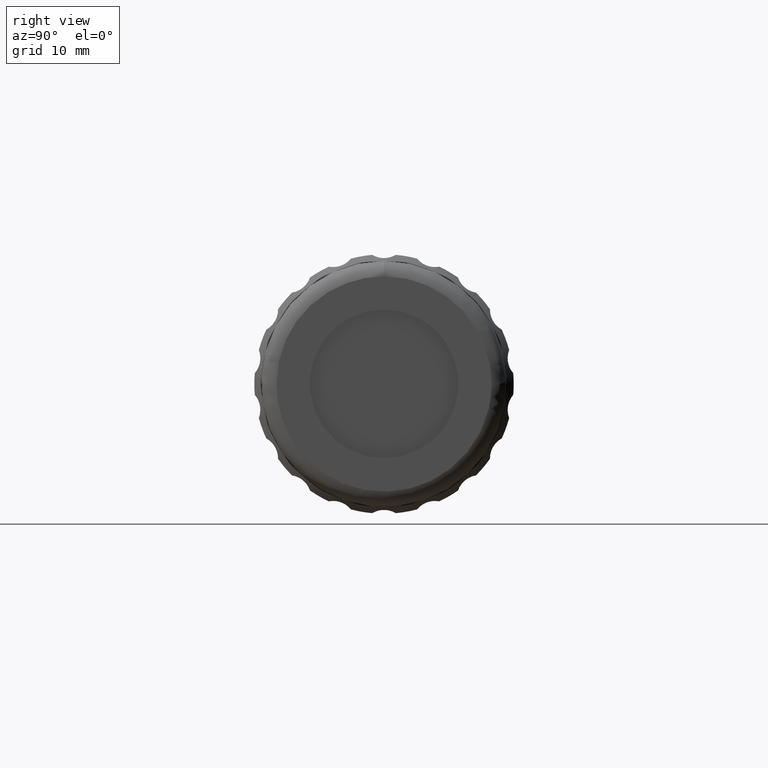
[diagram: clean part render]
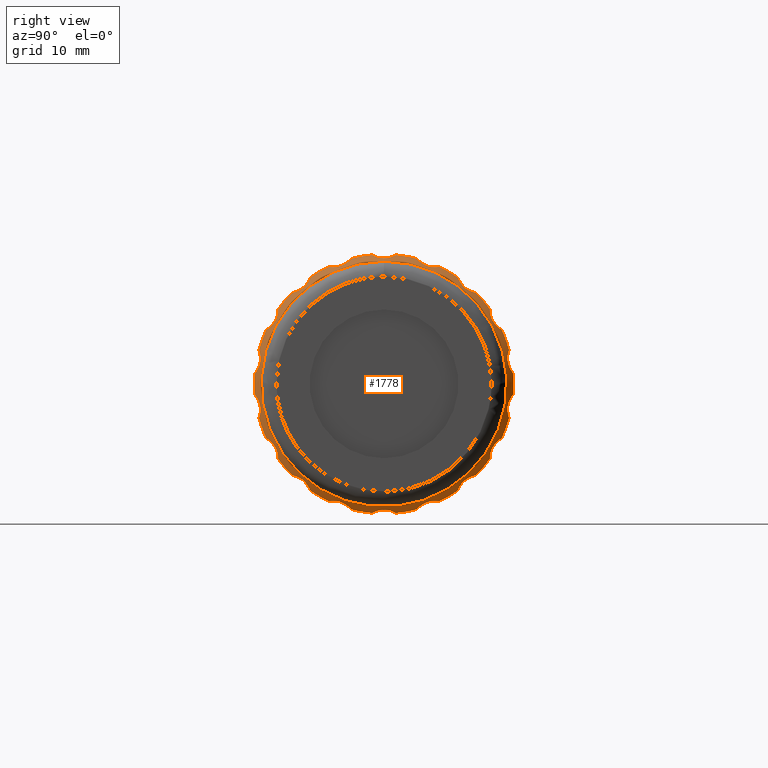
[diagram: same view with one face highlighted and labeled with its STEP entity id]
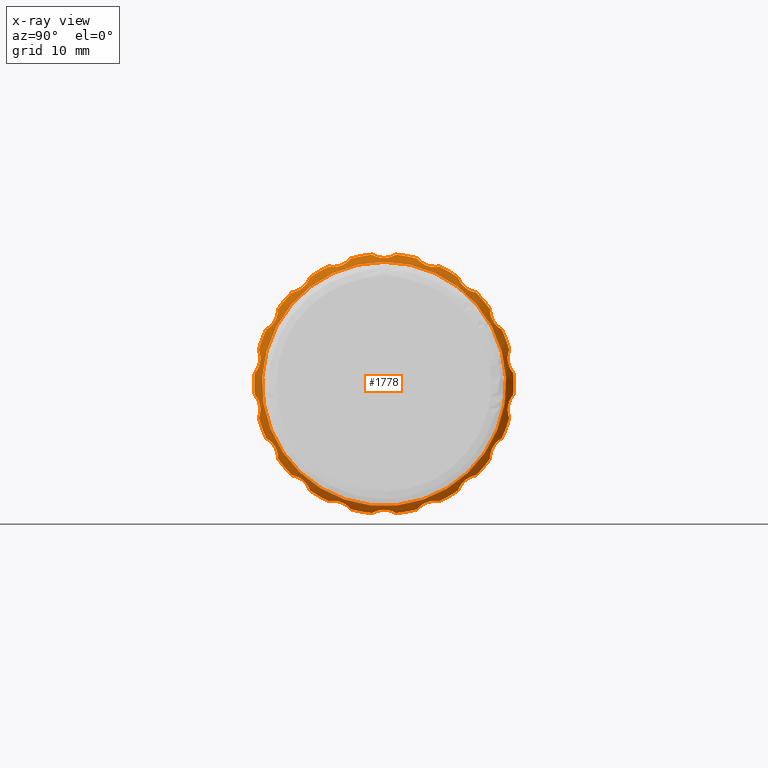
[diagram: x-ray of the same camera — body ghosted, the highlighted face saturated]
A machine part, right view. The second image highlights one B-rep face of the part: STEP entity #1778.
The next image is the same camera in x-ray: the body ghosted, the highlighted face saturated — about 11% of this face is hidden behind the body in this view.
In plain terms, the highlighted conical surface has half-angle 45 deg.
Its self-contained STEP definition (entity closure, byte-faithful):
#4 = DIRECTION ( 'NONE',  ( 1.000000000000000000, -0.000000000000000000, -0.000000000000000000 ) ) ;
#5 = CARTESIAN_POINT ( 'NONE',  ( 32.44685803487877962, 38.77725821771979042, -15.37949139323468373 ) ) ;
#7 = EDGE_LOOP ( 'NONE', ( #36 ) ) ;
#12 = CARTESIAN_POINT ( 'NONE',  ( 32.93404516599887444, 29.81145125225690151, 3.153385542406650810 ) ) ;
#18 = CIRCLE ( 'NONE', #800, 17.00000000000001421 ) ;
#25 = AXIS2_PLACEMENT_3D ( 'NONE', #215, #180, #1067 ) ;
#34 = CARTESIAN_POINT ( 'NONE',  ( 32.93404516599888865, 35.18529463847772121, -12.46115531925905806 ) ) ;
#35 = CARTESIAN_POINT ( 'NONE',  ( 32.44685803487880804, 62.42466032279404686, 4.463034991433892706 ) ) ;
#36 = ORIENTED_EDGE ( 'NONE', *, *, #1217, .F. ) ;
#52 = VERTEX_POINT ( 'NONE', #1651 ) ;
#54 = CIRCLE ( 'NONE', #1677, 17.00000000000000000 ) ;
#55 = CARTESIAN_POINT ( 'NONE',  ( 32.59371544402083742, 36.24308934852178510, 13.72813594343332078 ) ) ;
#56 = FACE_BOUND ( 'NONE', #7, .T. ) ;
#57 = CARTESIAN_POINT ( 'NONE',  ( 32.94671223884980549, 62.24503099672836015, -3.009155866290945003 ) ) ;
#58 = AXIS2_PLACEMENT_3D ( 'NONE', #1246, #1065, #629 ) ;
#73 = AXIS2_PLACEMENT_3D ( 'NONE', #961, #1660, #1021 ) ;
#75 = DIRECTION ( 'NONE',  ( 1.000000000000000000, -0.000000000000000000, -2.040851148208006519E-16 ) ) ;
#77 = CARTESIAN_POINT ( 'NONE',  ( 32.94671223884981970, 31.80451600533105250, 8.376639965934812082 ) ) ;
#87 = CARTESIAN_POINT ( 'NONE',  ( 32.85273454226021528, 34.82682132065500724, 12.25041840084325884 ) ) ;
#116 = AXIS2_PLACEMENT_3D ( 'NONE', #2822, #411, #1282 ) ;
#117 = DIRECTION ( 'NONE',  ( 0.000000000000000000, 1.000000000000000000, -3.552713678800500929E-15 ) ) ;
#123 = CARTESIAN_POINT ( 'NONE',  ( 32.44685803487880094, 46.02096199999999726, 0.000000000000000000 ) ) ;
#134 = CARTESIAN_POINT ( 'NONE',  ( 32.88671825240738400, 60.07042034813371600, -8.767556099430425576 ) ) ;
#139 = CARTESIAN_POINT ( 'NONE',  ( 32.94700126034476995, 40.24512641806274615, 15.45657204746855840 ) ) ;
#142 = CARTESIAN_POINT ( 'NONE',  ( 32.85273454226025081, 41.00885879755396957, -15.81961940227117047 ) ) ;
#157 = EDGE_CURVE ( 'NONE', #2365, #52, #647, .T. ) ;
#158 = CARTESIAN_POINT ( 'NONE',  ( 32.44685803487880804, 46.02096199999999726, 0.000000000000000000 ) ) ;
#162 = EDGE_CURVE ( 'NONE', #2006, #592, #1700, .T. ) ;
#163 = CARTESIAN_POINT ( 'NONE',  ( 32.88806413580804389, 60.63478551978837316, -7.787761549644995007 ) ) ;
#166 = CIRCLE ( 'NONE', #1841, 17.00000000000001421 ) ;
#168 = CARTESIAN_POINT ( 'NONE',  ( 32.93404516599890286, 56.41121047876224281, -12.83490613950238668 ) ) ;
#173 = DIRECTION ( 'NONE',  ( 1.000000000000000000, -0.000000000000000000, -0.000000000000000000 ) ) ;
#180 = DIRECTION ( 'NONE',  ( -1.000000000000000000, 0.000000000000000000, 0.000000000000000000 ) ) ;
#183 = VERTEX_POINT ( 'NONE', #5 ) ;
#192 = CARTESIAN_POINT ( 'NONE',  ( 32.44685803487879383, 61.45570754086768517, -7.125210880294358340 ) ) ;
#197 = CARTESIAN_POINT ( 'NONE',  ( 32.44685803487879383, 55.71814035268526766, -13.96297718956138922 ) ) ;
#206 = CARTESIAN_POINT ( 'NONE',  ( 32.93501117040979409, 46.30370853358314776, -16.51001374024769675 ) ) ;
#207 = CARTESIAN_POINT ( 'NONE',  ( 32.44685803487880804, 62.42466032279404686, 4.463034991433892706 ) ) ;
#215 = CARTESIAN_POINT ( 'NONE',  ( 32.44685803487880094, 46.02096199999999726, 0.000000000000000000 ) ) ;
#221 = ORIENTED_EDGE ( 'NONE', *, *, #1889, .T. ) ;
#225 = ORIENTED_EDGE ( 'NONE', *, *, #162, .T. ) ;
#226 = CARTESIAN_POINT ( 'NONE',  ( 32.85273454226015843, 29.57133557555759396, 2.188910012077406986 ) ) ;
#242 = CARTESIAN_POINT ( 'NONE',  ( 32.44685803487878673, 33.95401115804229875, -11.97450196783888821 ) ) ;
#255 = CARTESIAN_POINT ( 'NONE',  ( 32.71993598786254864, 34.45315972681317618, 12.08479540418656484 ) ) ;
#260 = ORIENTED_EDGE ( 'NONE', *, *, #2843, .T. ) ;
#264 = AXIS2_PLACEMENT_3D ( 'NONE', #2712, #496, #2521 ) ;
#270 = CARTESIAN_POINT ( 'NONE',  ( 32.94671223884984101, 46.16712201152108008, 16.50012336588021356 ) ) ;
#292 = CARTESIAN_POINT ( 'NONE',  ( 32.71993598786258417, 44.92746810093409238, 16.69313033811514302 ) ) ;
#298 = CARTESIAN_POINT ( 'NONE',  ( 32.71832649179923180, 32.11174389140475682, 9.297543592584467831 ) ) ;
#299 = CARTESIAN_POINT ( 'NONE',  ( 32.85273454226017975, 62.47058842444242543, -2.188910012077419420 ) ) ;
#302 = DIRECTION ( 'NONE',  ( 1.000000000000000000, -0.000000000000000000, -0.000000000000000000 ) ) ;
#306 = VERTEX_POINT ( 'NONE', #345 ) ;
#310 = VERTEX_POINT ( 'NONE', #1463 ) ;
#319 = CARTESIAN_POINT ( 'NONE',  ( 32.93501117040977988, 31.58149741732376725, 8.010141189208871637 ) ) ;
#323 = EDGE_CURVE ( 'NONE', #2113, #310, #166, .T. ) ;
#326 = CARTESIAN_POINT ( 'NONE',  ( 32.44685803487880804, 29.61726367720594766, -4.463034991433898035 ) ) ;
#328 = CARTESIAN_POINT ( 'NONE',  ( 32.44685803487875120, 59.90894840009008959, -9.804276299192858701 ) ) ;
#335 = VERTEX_POINT ( 'NONE', #2529 ) ;
#336 = CARTESIAN_POINT ( 'NONE',  ( 32.71832649179927444, 39.27997936338324791, -15.31240733331347137 ) ) ;
#345 = CARTESIAN_POINT ( 'NONE',  ( 32.44685803487878673, 33.95401115804229875, -11.97450196783888821 ) ) ;
#346 = EDGE_CURVE ( 'NONE', #795, #944, #671, .T. ) ;
#347 = DIRECTION ( 'NONE',  ( 1.000000000000000000, -0.000000000000000000, -0.000000000000000000 ) ) ;
#357 = CARTESIAN_POINT ( 'NONE',  ( 32.88806413580805810, 29.82024706863964880, -3.427813229224472291 ) ) ;
#358 = CARTESIAN_POINT ( 'NONE',  ( 32.59397570363887553, 62.79852387642730349, -1.604150078087053233 ) ) ;
#368 = CARTESIAN_POINT ( 'NONE',  ( 32.88806413580811494, 40.88917787025669526, -15.74413730464013028 ) ) ;
#372 = ORIENTED_EDGE ( 'NONE', *, *, #1917, .T. ) ;
#377 = CARTESIAN_POINT ( 'NONE',  ( 32.71832649179924601, 41.34222858161454184, 16.06300466438845120 ) ) ;
#380 = EDGE_CURVE ( 'NONE', #1147, #2622, #1183, .T. ) ;
#381 = CARTESIAN_POINT ( 'NONE',  ( 32.85273454226025791, 32.01281285169071822, -8.896813698364468337 ) ) ;
#383 = CARTESIAN_POINT ( 'NONE',  ( 32.44685803487877251, 29.08007986503451647, -1.416514203673299832 ) ) ;
#387 = CARTESIAN_POINT ( 'NONE',  ( 32.85273454226019396, 57.21510267934501570, -12.25041840084325528 ) ) ;
#400 = DIRECTION ( 'NONE',  ( 0.000000000000000000, 1.000000000000000000, 8.881784197001252323E-16 ) ) ;
#404 = CARTESIAN_POINT ( 'NONE',  ( 32.44685803487878673, 46.02096199999999726, 0.000000000000000000 ) ) ;
#405 = CARTESIAN_POINT ( 'NONE',  ( 32.44685803487879383, 47.56772114077768521, 16.92948717948718240 ) ) ;
#409 = CARTESIAN_POINT ( 'NONE',  ( 32.71832649179930286, 50.69969541838543137, -16.06300466438838725 ) ) ;
#411 = DIRECTION ( 'NONE',  ( 1.000000000000000000, -0.000000000000000000, -0.000000000000000000 ) ) ;
#415 = CARTESIAN_POINT ( 'NONE',  ( 32.88671825240745505, 52.21565638232765849, 15.35848564612278899 ) ) ;
#433 = VERTEX_POINT ( 'NONE', #1405 ) ;
#436 = AXIS2_PLACEMENT_3D ( 'NONE', #614, #1280, #2174 ) ;
#440 = CARTESIAN_POINT ( 'NONE',  ( 32.88806413580806520, 62.22167693136037769, 3.427813229224471847 ) ) ;
#456 = EDGE_LOOP ( 'NONE', ( #2735, #1170, #772, #221, #1384, #1859, #1989, #260, #2410, #1313, #990, #2250, #2610, #1451, #372, #1830, #899, #466, #1395, #1644, #1368, #907, #887, #918, #2740, #225, #996, #1574, #2315, #2057, #1398, #2108, #828, #1663, #665, #1874 ) ) ;
#466 = ORIENTED_EDGE ( 'NONE', *, *, #672, .T. ) ;
#472 = CARTESIAN_POINT ( 'NONE',  ( 32.71832649179926733, 36.13051957456375618, 13.49406587643664324 ) ) ;
#484 = CARTESIAN_POINT ( 'NONE',  ( 32.94700126034476284, 35.30699293778219783, 12.54897458209229022 ) ) ;
#487 = EDGE_CURVE ( 'NONE', #1058, #2365, #563, .T. ) ;
#496 = DIRECTION ( 'NONE',  ( 1.000000000000000000, -0.000000000000000000, -0.000000000000000000 ) ) ;
#497 = CARTESIAN_POINT ( 'NONE',  ( 32.44685803487877962, 33.95401115804232006, 11.97450196783887932 ) ) ;
#501 = VERTEX_POINT ( 'NONE', #1928 ) ;
#505 = CARTESIAN_POINT ( 'NONE',  ( 32.85210940846934591, 46.72407182862872332, 16.58035111081103352 ) ) ;
#508 = CARTESIAN_POINT ( 'NONE',  ( 32.85273454226017975, 60.02911114830940420, 8.896813698364438139 ) ) ;
#512 = CARTESIAN_POINT ( 'NONE',  ( 32.94671223884984101, 35.52685220674476341, 12.73377765964755071 ) ) ;
#517 = VERTEX_POINT ( 'NONE', #1733 ) ;
#526 = CARTESIAN_POINT ( 'NONE',  ( 32.93404516599891707, 46.31168852818061055, 16.51083150983224357 ) ) ;
#531 = CARTESIAN_POINT ( 'NONE',  ( 32.44685803487877251, 29.08007986503451647, -1.416514203673299832 ) ) ;
#545 = CARTESIAN_POINT ( 'NONE',  ( 32.88671825240747637, 31.40330651472126533, -7.783409789179908778 ) ) ;
#547 = DIRECTION ( 'NONE',  ( 0.000000000000000000, 1.000000000000000000, 6.217248937900876626E-15 ) ) ;
#557 = CARTESIAN_POINT ( 'NONE',  ( 32.88671825240739821, 62.22181512952325022, -3.433610011084526459 ) ) ;
#560 = CIRCLE ( 'NONE', #1302, 17.00000000000000000 ) ;
#563 = CIRCLE ( 'NONE', #932, 17.00000000000000000 ) ;
#576 = CARTESIAN_POINT ( 'NONE',  ( 32.71993598786256285, 29.77132104384358158, -3.975612932441852099 ) ) ;
#583 = EDGE_CURVE ( 'NONE', #501, #1245, #1305, .T. ) ;
#586 = CARTESIAN_POINT ( 'NONE',  ( 32.44685803487878673, 61.45570754086772070, 7.125210880294360116 ) ) ;
#590 = CARTESIAN_POINT ( 'NONE',  ( 32.88671825240740532, 29.62277607563510173, -2.314480119284870518 ) ) ;
#591 = CARTESIAN_POINT ( 'NONE',  ( 32.85210940846933170, 57.21721963540510814, 12.24933554730703378 ) ) ;
#592 = VERTEX_POINT ( 'NONE', #1530 ) ;
#594 = CARTESIAN_POINT ( 'NONE',  ( 32.44685803487879383, 53.26466578228019699, 15.37949139323468017 ) ) ;
#596 = EDGE_CURVE ( 'NONE', #517, #1927, #790, .T. ) ;
#600 = CARTESIAN_POINT ( 'NONE',  ( 32.93404516599891707, 45.73023547181938397, -16.51083150983224002 ) ) ;
#603 = CARTESIAN_POINT ( 'NONE',  ( 32.93404516599888154, 62.33144101137909843, 2.580766064489510292 ) ) ;
#605 = CARTESIAN_POINT ( 'NONE',  ( 32.85273454226024370, 51.03306520244602495, 15.81961940227117758 ) ) ;
#614 = CARTESIAN_POINT ( 'NONE',  ( 32.44685803487880094, 46.02096199999999726, 0.000000000000000000 ) ) ;
#616 = CARTESIAN_POINT ( 'NONE',  ( 32.88806413580808652, 56.22807377565807485, 13.03947610223928599 ) ) ;
#623 = CARTESIAN_POINT ( 'NONE',  ( 32.44685803487877962, 47.56772114077767810, -16.92948717948717885 ) ) ;
#624 = CARTESIAN_POINT ( 'NONE',  ( 32.88806413580810784, 52.20992366875027102, -15.35935614810682814 ) ) ;
#629 = DIRECTION ( 'NONE',  ( 0.000000000000000000, 1.000000000000000000, 0.000000000000000000 ) ) ;
#646 = CARTESIAN_POINT ( 'NONE',  ( 32.93404516599894549, 51.94119253261677471, 15.41567220399189075 ) ) ;
#647 = B_SPLINE_CURVE_WITH_KNOTS ( 'NONE', 3,
 ( #197, #1959, #2158, #1931, #1081, #168, #1306, #2831, #1706, #1735, #387, #1097, #872, #1986 ),
 .UNSPECIFIED., .F., .F.,
 ( 4, 2, 2, 2, 2, 2, 4 ),
 ( 3.469446951953614189E-18, 0.0008570537395405488984, 0.001285580609310823510, 0.001714107479081098230, 0.002142634348851372734, 0.002571161218621647020, 0.003428214958162201231 ),
 .UNSPECIFIED. ) ;
#651 = CARTESIAN_POINT ( 'NONE',  ( 32.88671825240744084, 45.45276486285489881, -16.55096588861032814 ) ) ;
#654 = CARTESIAN_POINT ( 'NONE',  ( 32.88806413580805099, 29.62488855559159973, 2.319880045867564355 ) ) ;
#657 = B_SPLINE_CURVE_WITH_KNOTS ( 'NONE', 3,
 ( #1621, #55, #472, #1834, #2730, #2265, #512, #484, #721, #2087, #87, #255, #2508, #497 ),
 .UNSPECIFIED., .F., .F.,
 ( 4, 2, 2, 2, 2, 2, 4 ),
 ( 1.734723475976807094E-18, 0.0008570537395405545362, 0.001285580609310830883, 0.001714107479081107338, 0.002142634348851384010, 0.002571161218621660031, 0.003428214958162204701 ),
 .UNSPECIFIED. ) ;
#658 = DIRECTION ( 'NONE',  ( 1.000000000000000000, -0.000000000000000000, -0.000000000000000000 ) ) ;
#663 = AXIS2_PLACEMENT_3D ( 'NONE', #1705, #347, #1912 ) ;
#665 = ORIENTED_EDGE ( 'NONE', *, *, #380, .T. ) ;
#667 = CARTESIAN_POINT ( 'NONE',  ( 32.44685803487876541, 32.13297559990991914, 9.804276299192837385 ) ) ;
#671 = CIRCLE ( 'NONE', #73, 17.00000000000000000 ) ;
#672 = EDGE_CURVE ( 'NONE', #981, #1437, #895, .T. ) ;
#692 = VERTEX_POINT ( 'NONE', #1419 ) ;
#706 = CIRCLE ( 'NONE', #1085, 16.99999999999998579 ) ;
#710 = VERTEX_POINT ( 'NONE', #2335 ) ;
#721 = CARTESIAN_POINT ( 'NONE',  ( 32.93501117040978698, 35.19193332115172979, 12.46565831306566530 ) ) ;
#732 = CARTESIAN_POINT ( 'NONE',  ( 32.94700126034472021, 60.23975066403164647, 8.372093230236089312 ) ) ;
#736 = B_SPLINE_CURVE_WITH_KNOTS ( 'NONE', 3,
 ( #1902, #980, #377, #2350, #1674, #2134, #2579, #139, #2597, #1935, #1872, #2161, #2621, #1292 ),
 .UNSPECIFIED., .F., .F.,
 ( 4, 2, 2, 2, 2, 2, 4 ),
 ( 1.430489624538199204E-17, 0.0008570537395405792560, 0.001285580609310864927, 0.001714107479081150706, 0.002142634348851436485, 0.002571161218621722047, 0.003428214958162300111 ),
 .UNSPECIFIED. ) ;
#737 = CARTESIAN_POINT ( 'NONE',  ( 32.59397570363886842, 30.80386254956549053, 7.245672108642462028 ) ) ;
#741 = EDGE_CURVE ( 'NONE', #433, #950, #2359, .T. ) ;
#747 = CARTESIAN_POINT ( 'NONE',  ( 32.44685803487879383, 44.47420285922232353, 16.92948717948717530 ) ) ;
#753 = CARTESIAN_POINT ( 'NONE',  ( 32.94700126034473442, 31.66112224774798278, 8.127785578975540659 ) ) ;
#754 = CARTESIAN_POINT ( 'NONE',  ( 32.85210940846930328, 62.22732658115022275, -3.571575765922810231 ) ) ;
#758 = CIRCLE ( 'NONE', #942, 16.99999999999997513 ) ;
#772 = ORIENTED_EDGE ( 'NONE', *, *, #2322, .T. ) ;
#773 = CARTESIAN_POINT ( 'NONE',  ( 32.85210940846936012, 39.68944081912606947, -15.33995586450726911 ) ) ;
#780 = CARTESIAN_POINT ( 'NONE',  ( 32.94700126034472731, 60.38080175225200463, -8.127785578975545988 ) ) ;
#788 = EDGE_CURVE ( 'NONE', #692, #183, #2677, .T. ) ;
#790 = B_SPLINE_CURVE_WITH_KNOTS ( 'NONE', 3,
 ( #1945, #2419, #2141, #2841, #824, #603, #1504, #2481, #1107, #440, #926, #1153, #2216, #35 ),
 .UNSPECIFIED., .F., .F.,
 ( 4, 2, 2, 2, 2, 2, 4 ),
 ( 3.903127820947815962E-18, 0.0008570537395405356711, 0.001285580609310801392, 0.001714107479081067439, 0.002142634348851333269, 0.002571161218621598882, 0.003428214958162131842 ),
 .UNSPECIFIED. ) ;
#794 = EDGE_CURVE ( 'NONE', #2024, #306, #2070, .T. ) ;
#795 = VERTEX_POINT ( 'NONE', #383 ) ;
#800 = AXIS2_PLACEMENT_3D ( 'NONE', #2836, #2788, #117 ) ;
#802 = B_SPLINE_CURVE_WITH_KNOTS ( 'NONE', 3,
 ( #242, #2647, #2030, #2887, #2480, #34, #1583, #1804, #868, #1765, #1117, #2873, #2012, #1792 ),
 .UNSPECIFIED., .F., .F.,
 ( 4, 2, 2, 2, 2, 2, 4 ),
 ( 1.636534854170084423E-17, 0.0008570537395405636435, 0.001285580609310837171, 0.001714107479081110807, 0.002142634348851384877, 0.002571161218621658296, 0.003428214958162212507 ),
 .UNSPECIFIED. ) ;
#824 = CARTESIAN_POINT ( 'NONE',  ( 32.88671825240740532, 62.41914792436489989, 2.314480119284867854 ) ) ;
#826 = CARTESIAN_POINT ( 'NONE',  ( 32.44685803487880094, 50.35770948083630572, 16.43753695927281200 ) ) ;
#828 = ORIENTED_EDGE ( 'NONE', *, *, #323, .T. ) ;
#833 = CARTESIAN_POINT ( 'NONE',  ( 32.85210940846928196, 60.02841235131358388, -8.899086528648503247 ) ) ;
#845 = CARTESIAN_POINT ( 'NONE',  ( 32.85273454226022238, 46.72175410136635065, -16.57981987161947046 ) ) ;
#846 = CARTESIAN_POINT ( 'NONE',  ( 32.94700126034477705, 51.79679758193721995, -15.45657204746853175 ) ) ;
#847 = CIRCLE ( 'NONE', #2632, 17.00000000000000000 ) ;
#848 = CARTESIAN_POINT ( 'NONE',  ( 32.94700126034472021, 29.74726016049911692, 2.726265681694551635 ) ) ;
#849 = CARTESIAN_POINT ( 'NONE',  ( 32.94671223884983391, 56.73900192251907981, 12.54587797077277322 ) ) ;
#862 = CARTESIAN_POINT ( 'NONE',  ( 33.44685803487879383, 46.02096199999999726, 15.99999999999999645 ) ) ;
#868 = CARTESIAN_POINT ( 'NONE',  ( 32.93501117040979409, 35.62512614287679469, -12.82915025000381171 ) ) ;
#872 = CARTESIAN_POINT ( 'NONE',  ( 32.59397570363888264, 57.84219225024989441, -12.01325914816416329 ) ) ;
#877 = CARTESIAN_POINT ( 'NONE',  ( 32.88671825240740532, 29.82010887047672298, 3.433610011084513136 ) ) ;
#887 = ORIENTED_EDGE ( 'NONE', *, *, #1958, .T. ) ;
#890 = CARTESIAN_POINT ( 'NONE',  ( 32.59371544402085163, 50.51385775461107386, -16.24445744886877918 ) ) ;
#895 = B_SPLINE_CURVE_WITH_KNOTS ( 'NONE', 3,
 ( #1137, #913, #2760, #754, #557, #2312, #57, #1640, #2746, #1402, #299, #2548, #358, #2100 ),
 .UNSPECIFIED., .F., .F.,
 ( 4, 2, 2, 2, 2, 2, 4 ),
 ( 6.071532165918824830E-18, 0.0008570537395405441279, 0.001285580609310812668, 0.001714107479081081534, 0.002142634348851350182, 0.002571161218621618831, 0.003428214958162156129 ),
 .UNSPECIFIED. ) ;
#899 = ORIENTED_EDGE ( 'NONE', *, *, #1905, .T. ) ;
#906 = CARTESIAN_POINT ( 'NONE',  ( 32.94700126034477705, 45.87991091177963199, 16.49987880921160865 ) ) ;
#907 = ORIENTED_EDGE ( 'NONE', *, *, #977, .T. ) ;
#913 = CARTESIAN_POINT ( 'NONE',  ( 32.59371544402080190, 62.33552269872132712, -4.231266864385903936 ) ) ;
#918 = ORIENTED_EDGE ( 'NONE', *, *, #741, .T. ) ;
#924 = DIRECTION ( 'NONE',  ( 0.000000000000000000, 0.000000000000000000, 1.000000000000000000 ) ) ;
#926 = CARTESIAN_POINT ( 'NONE',  ( 32.85273454226017975, 62.22720588179112156, 3.569201001427911191 ) ) ;
#931 = CARTESIAN_POINT ( 'NONE',  ( 32.44685803487880094, 32.13297559991000441, -9.804276299192871136 ) ) ;
#932 = AXIS2_PLACEMENT_3D ( 'NONE', #1854, #2103, #2114 ) ;
#937 = CARTESIAN_POINT ( 'NONE',  ( 32.44685803487877251, 46.02096199999999726, 0.000000000000000000 ) ) ;
#942 = AXIS2_PLACEMENT_3D ( 'NONE', #1829, #1605, #2504 ) ;
#944 = VERTEX_POINT ( 'NONE', #1008 ) ;
#950 = VERTEX_POINT ( 'NONE', #1606 ) ;
#955 = CARTESIAN_POINT ( 'NONE',  ( 32.71832649179925312, 61.02747999826900127, 7.396964432529774314 ) ) ;
#958 = DIRECTION ( 'NONE',  ( -1.000000000000000000, 0.000000000000000000, 2.040851148208006519E-16 ) ) ;
#961 = CARTESIAN_POINT ( 'NONE',  ( 32.44685803487880094, 46.02096199999999726, 0.000000000000000000 ) ) ;
#969 = DIRECTION ( 'NONE',  ( 0.000000000000000000, 0.000000000000000000, 1.000000000000000000 ) ) ;
#977 = EDGE_CURVE ( 'NONE', #1020, #2668, #2515, .T. ) ;
#980 = CARTESIAN_POINT ( 'NONE',  ( 32.59371544402079479, 41.52806624538890645, 16.24445744886884668 ) ) ;
#981 = VERTEX_POINT ( 'NONE', #1673 ) ;
#990 = ORIENTED_EDGE ( 'NONE', *, *, #1156, .T. ) ;
#996 = ORIENTED_EDGE ( 'NONE', *, *, #1445, .T. ) ;
#1001 = CARTESIAN_POINT ( 'NONE',  ( 32.85210940846931749, 29.57040993796760020, -2.186719745017569050 ) ) ;
#1008 = CARTESIAN_POINT ( 'NONE',  ( 32.44685803487877962, 29.08007986503451647, 1.416514203673290728 ) ) ;
#1012 = CARTESIAN_POINT ( 'NONE',  ( 32.88671825240746216, 39.82626761767232892, -15.35848564612279432 ) ) ;
#1016 = CARTESIAN_POINT ( 'NONE',  ( 32.94671223884979838, 29.74613216397480997, -2.721276841238304378 ) ) ;
#1018 = B_SPLINE_CURVE_WITH_KNOTS ( 'NONE', 3,
 ( #2868, #890, #409, #1515, #1568, #1727, #2667, #846, #1746, #624, #1786, #2398, #2626, #1113 ),
 .UNSPECIFIED., .F., .F.,
 ( 4, 2, 2, 2, 2, 2, 4 ),
 ( 1.201851678989727231E-17, 0.0008570537395405912907, 0.001285580609310872733, 0.001714107479081154392, 0.002142634348851436485, 0.002571161218621717710, 0.003428214958162281029 ),
 .UNSPECIFIED. ) ;
#1020 = VERTEX_POINT ( 'NONE', #1333 ) ;
#1021 = DIRECTION ( 'NONE',  ( 0.000000000000000000, 0.000000000000000000, 1.000000000000000000 ) ) ;
#1027 = VERTEX_POINT ( 'NONE', #405 ) ;
#1028 = CARTESIAN_POINT ( 'NONE',  ( 32.71993598786259838, 41.33912331703049858, -16.06040833662843070 ) ) ;
#1031 = CARTESIAN_POINT ( 'NONE',  ( 32.94700126034471310, 29.79624668935391441, -3.004082092195002662 ) ) ;
#1052 = CARTESIAN_POINT ( 'NONE',  ( 32.93501117040977277, 60.46042658267626280, -8.010141189208873413 ) ) ;
#1055 = CARTESIAN_POINT ( 'NONE',  ( 32.94700126034480547, 51.53170824842818121, 15.55305667428728889 ) ) ;
#1058 = VERTEX_POINT ( 'NONE', #1547 ) ;
#1061 = CARTESIAN_POINT ( 'NONE',  ( 32.85210940846933880, 45.31785217137128541, -16.58035111081102997 ) ) ;
#1062 = CARTESIAN_POINT ( 'NONE',  ( 32.59397570363893237, 32.13747616120608797, -9.555558641669259501 ) ) ;
#1065 = DIRECTION ( 'NONE',  ( 1.000000000000000000, -0.000000000000000000, -0.000000000000000000 ) ) ;
#1067 = DIRECTION ( 'NONE',  ( 0.000000000000000000, 0.000000000000000000, 1.000000000000000000 ) ) ;
#1071 = VERTEX_POINT ( 'NONE', #2034 ) ;
#1075 = CARTESIAN_POINT ( 'NONE',  ( 32.59371544402080190, 57.84262694411020078, 12.01319058448289923 ) ) ;
#1081 = CARTESIAN_POINT ( 'NONE',  ( 32.88671825240743374, 56.22445354203716761, -13.04400552683793357 ) ) ;
#1085 = AXIS2_PLACEMENT_3D ( 'NONE', #1940, #173, #1953 ) ;
#1087 = VERTEX_POINT ( 'NONE', #862 ) ;
#1097 = CARTESIAN_POINT ( 'NONE',  ( 32.71993598786254154, 57.58876427318681834, -12.08479540418657017 ) ) ;
#1107 = CARTESIAN_POINT ( 'NONE',  ( 32.93501117040976567, 62.23105311343569923, 3.145384777659983033 ) ) ;
#1113 = CARTESIAN_POINT ( 'NONE',  ( 32.44685803487878673, 53.26466578228019699, -15.37949139323468017 ) ) ;
#1117 = CARTESIAN_POINT ( 'NONE',  ( 32.85273454226020107, 35.90049711072168748, -13.15133936029217665 ) ) ;
#1137 = CARTESIAN_POINT ( 'NONE',  ( 32.44685803487877962, 62.42466032279407528, -4.463034991433911358 ) ) ;
#1138 = EDGE_CURVE ( 'NONE', #950, #2006, #560, .T. ) ;
#1146 = CARTESIAN_POINT ( 'NONE',  ( 32.44685803487879383, 47.56772114077768521, 16.92948717948718240 ) ) ;
#1147 = VERTEX_POINT ( 'NONE', #2689 ) ;
#1153 = CARTESIAN_POINT ( 'NONE',  ( 32.71993598786254864, 62.27060295615641650, 3.975612932441850322 ) ) ;
#1156 = EDGE_CURVE ( 'NONE', #1071, #2550, #54, .T. ) ;
#1168 = VERTEX_POINT ( 'NONE', #192 ) ;
#1170 = ORIENTED_EDGE ( 'NONE', *, *, #2570, .T. ) ;
#1176 = CARTESIAN_POINT ( 'NONE',  ( 32.88806413580806520, 31.40713848021163557, 7.787761549644993231 ) ) ;
#1183 = CIRCLE ( 'NONE', #1426, 16.99999999999998579 ) ;
#1194 = AXIS2_PLACEMENT_3D ( 'NONE', #158, #1456, #1877 ) ;
#1217 = EDGE_CURVE ( 'NONE', #1087, #1087, #1827, .T. ) ;
#1228 = CARTESIAN_POINT ( 'NONE',  ( 32.71993598786259838, 32.11103400804057628, -9.293558664531980540 ) ) ;
#1234 = CARTESIAN_POINT ( 'NONE',  ( 32.44685803487877962, 46.02096199999999726, 0.000000000000000000 ) ) ;
#1245 = VERTEX_POINT ( 'NONE', #2522 ) ;
#1246 = CARTESIAN_POINT ( 'NONE',  ( 32.44685803487878673, 46.02096199999999726, 0.000000000000000000 ) ) ;
#1248 = CARTESIAN_POINT ( 'NONE',  ( 32.93404516599887444, 60.46512478920966061, 8.003639195957678254 ) ) ;
#1251 = EDGE_CURVE ( 'NONE', #1245, #2113, #657, .T. ) ;
#1253 = B_SPLINE_CURVE_WITH_KNOTS ( 'NONE', 3,
 ( #667, #2089, #298, #1850, #2288, #2777, #77, #753, #319, #1176, #2745, #1639, #737, #1622 ),
 .UNSPECIFIED., .F., .F.,
 ( 4, 2, 2, 2, 2, 2, 4 ),
 ( 1.398578778534940505E-17, 0.0008570537395405541025, 0.001285580609310826112, 0.001714107479081098664, 0.002142634348851370999, 0.002571161218621643117, 0.003428214958162182583 ),
 .UNSPECIFIED. ) ;
#1255 = CARTESIAN_POINT ( 'NONE',  ( 32.44685803487880094, 32.13297559991000441, -9.804276299192871136 ) ) ;
#1261 = CARTESIAN_POINT ( 'NONE',  ( 32.94671223884986233, 51.80168204276987609, 15.45505450088584176 ) ) ;
#1273 = CARTESIAN_POINT ( 'NONE',  ( 32.44685803487879383, 61.45570754086768517, -7.125210880294358340 ) ) ;
#1280 = DIRECTION ( 'NONE',  ( 1.000000000000000000, -0.000000000000000000, -0.000000000000000000 ) ) ;
#1281 = CARTESIAN_POINT ( 'NONE',  ( 32.59397570363888974, 29.70655927031907595, -4.230856126619375601 ) ) ;
#1282 = DIRECTION ( 'NONE',  ( 0.000000000000000000, 1.000000000000000000, 0.000000000000000000 ) ) ;
#1292 = CARTESIAN_POINT ( 'NONE',  ( 32.44685803487878673, 38.77725821771978332, 15.37949139323467307 ) ) ;
#1302 = AXIS2_PLACEMENT_3D ( 'NONE', #2673, #2177, #400 ) ;
#1304 = EDGE_CURVE ( 'NONE', #710, #1071, #1991, .T. ) ;
#1305 = CIRCLE ( 'NONE', #58, 17.00000000000000000 ) ;
#1306 = CARTESIAN_POINT ( 'NONE',  ( 32.94671223884982680, 56.51507179325524532, -12.73377765964754893 ) ) ;
#1313 = ORIENTED_EDGE ( 'NONE', *, *, #1304, .T. ) ;
#1333 = CARTESIAN_POINT ( 'NONE',  ( 32.44685803487878673, 61.45570754086772070, 7.125210880294360116 ) ) ;
#1354 = CARTESIAN_POINT ( 'NONE',  ( 32.44685803487877962, 29.08007986503451647, 1.416514203673290728 ) ) ;
#1368 = ORIENTED_EDGE ( 'NONE', *, *, #2050, .T. ) ;
#1372 = CARTESIAN_POINT ( 'NONE',  ( 33.44685803487879383, 46.02096199999999726, -2.040851148208057549E-16 ) ) ;
#1373 = AXIS2_PLACEMENT_3D ( 'NONE', #2382, #2804, #1922 ) ;
#1384 = ORIENTED_EDGE ( 'NONE', *, *, #794, .T. ) ;
#1393 = EDGE_CURVE ( 'NONE', #2863, #710, #2775, .T. ) ;
#1395 = ORIENTED_EDGE ( 'NONE', *, *, #2434, .F. ) ;
#1398 = ORIENTED_EDGE ( 'NONE', *, *, #583, .T. ) ;
#1402 = CARTESIAN_POINT ( 'NONE',  ( 32.88806413580805099, 62.41703544440839835, -2.319880045867577234 ) ) ;
#1405 = CARTESIAN_POINT ( 'NONE',  ( 32.44685803487877962, 58.08791284195770288, 11.97450196783888643 ) ) ;
#1413 = CARTESIAN_POINT ( 'NONE',  ( 32.71993598786254864, 59.93088999195953903, 9.293558664531927249 ) ) ;
#1419 = CARTESIAN_POINT ( 'NONE',  ( 32.44685803487879383, 36.32378364731472686, -13.96297718956140699 ) ) ;
#1426 = AXIS2_PLACEMENT_3D ( 'NONE', #123, #1911, #2514 ) ;
#1428 = CARTESIAN_POINT ( 'NONE',  ( 32.85273454226021528, 45.32016989863367229, 16.57981987161946691 ) ) ;
#1437 = VERTEX_POINT ( 'NONE', #1939 ) ;
#1441 = CARTESIAN_POINT ( 'NONE',  ( 32.44685803487876541, 41.68421451916363196, 16.43753695927285818 ) ) ;
#1444 = B_SPLINE_CURVE_WITH_KNOTS ( 'NONE', 3,
 ( #1146, #2281, #2095, #505, #2258, #526, #270, #906, #1858, #1798, #1428, #292, #2038, #747 ),
 .UNSPECIFIED., .F., .F.,
 ( 4, 2, 2, 2, 2, 2, 4 ),
 ( 0.000000000000000000, 0.0008570537395405847855, 0.001285580609310872299, 0.001714107479081159813, 0.002142634348851447327, 0.002571161218621734624, 0.003428214958162296641 ),
 .UNSPECIFIED. ) ;
#1445 = EDGE_CURVE ( 'NONE', #592, #1027, #2842, .T. ) ;
#1448 = CARTESIAN_POINT ( 'NONE',  ( 32.93501117040983672, 31.86424395090698525, -8.499872551038858859 ) ) ;
#1451 = ORIENTED_EDGE ( 'NONE', *, *, #157, .T. ) ;
#1456 = DIRECTION ( 'NONE',  ( 1.000000000000000000, -0.000000000000000000, -0.000000000000000000 ) ) ;
#1463 = CARTESIAN_POINT ( 'NONE',  ( 32.44685803487876541, 32.13297559990991914, 9.804276299192837385 ) ) ;
#1466 = CIRCLE ( 'NONE', #663, 16.99999999999997513 ) ;
#1478 = CARTESIAN_POINT ( 'NONE',  ( 32.85273454226017265, 60.72990324967569364, -7.683006173255046534 ) ) ;
#1486 = CARTESIAN_POINT ( 'NONE',  ( 32.94671223884989075, 31.65835599381003362, -8.123483399945421013 ) ) ;
#1491 = CARTESIAN_POINT ( 'NONE',  ( 32.85210940846936722, 52.35248318087391795, 15.33995586450727089 ) ) ;
#1496 = CARTESIAN_POINT ( 'NONE',  ( 32.94671223884985523, 45.87480198847892865, -16.50012336588022066 ) ) ;
#1498 = CARTESIAN_POINT ( 'NONE',  ( 32.71832649179921759, 29.38953693794697131, -1.818341456876848783 ) ) ;
#1504 = CARTESIAN_POINT ( 'NONE',  ( 32.94671223884980549, 62.29579183602519521, 2.721276841238303934 ) ) ;
#1505 = B_SPLINE_CURVE_WITH_KNOTS ( 'NONE', 3,
 ( #328, #2101, #2404, #833, #134, #2571, #1943, #780, #1052, #163, #1478, #1909, #1518, #1273 ),
 .UNSPECIFIED., .F., .F.,
 ( 4, 2, 2, 2, 2, 2, 4 ),
 ( 2.194270917860438266E-17, 0.0008570537395405623425, 0.001285580609310835003, 0.001714107479081107555, 0.002142634348851380106, 0.002571161218621652658, 0.003428214958162185619 ),
 .UNSPECIFIED. ) ;
#1515 = CARTESIAN_POINT ( 'NONE',  ( 32.85210940846939565, 51.03106894574504793, -15.82091131322981070 ) ) ;
#1518 = CARTESIAN_POINT ( 'NONE',  ( 32.59397570363887553, 61.23806145043451465, -7.245672108642466469 ) ) ;
#1530 = CARTESIAN_POINT ( 'NONE',  ( 32.44685803487880094, 50.35770948083630572, 16.43753695927281200 ) ) ;
#1532 = CARTESIAN_POINT ( 'NONE',  ( 32.71832649179928865, 52.76194463661674661, 15.31240733331347492 ) ) ;
#1540 = B_SPLINE_CURVE_WITH_KNOTS ( 'NONE', 3,
 ( #2414, #2009, #2655, #2869, #877, #12, #1761, #848, #2669, #654, #226, #2446, #2190, #1354 ),
 .UNSPECIFIED., .F., .F.,
 ( 4, 2, 2, 2, 2, 2, 4 ),
 ( 2.301370753934467615E-17, 0.0008570537395405523678, 0.001285580609310820258, 0.001714107479081088256, 0.002142634348851356254, 0.002571161218621624035, 0.003428214958162163501 ),
 .UNSPECIFIED. ) ;
#1547 = CARTESIAN_POINT ( 'NONE',  ( 32.44685803487878673, 53.26466578228019699, -15.37949139323468017 ) ) ;
#1568 = CARTESIAN_POINT ( 'NONE',  ( 32.88671825240747637, 51.14779506847382606, -15.74715537868998183 ) ) ;
#1574 = ORIENTED_EDGE ( 'NONE', *, *, #2085, .T. ) ;
#1580 = EDGE_CURVE ( 'NONE', #335, #1168, #1505, .T. ) ;
#1583 = CARTESIAN_POINT ( 'NONE',  ( 32.94671223884983391, 35.30292207748090760, -12.54587797077277322 ) ) ;
#1593 = AXIS2_PLACEMENT_3D ( 'NONE', #937, #958, #969 ) ;
#1605 = DIRECTION ( 'NONE',  ( 1.000000000000000000, -0.000000000000000000, -0.000000000000000000 ) ) ;
#1606 = CARTESIAN_POINT ( 'NONE',  ( 32.44685803487878673, 55.71814035268528187, 13.96297718956140166 ) ) ;
#1619 = CARTESIAN_POINT ( 'NONE',  ( 32.93501117040975146, 60.17768004909310520, 8.499872551038848201 ) ) ;
#1621 = CARTESIAN_POINT ( 'NONE',  ( 32.44685803487879383, 36.32378364731472686, 13.96297718956139100 ) ) ;
#1622 = CARTESIAN_POINT ( 'NONE',  ( 32.44685803487879383, 30.58621645913232356, 7.125210880294359228 ) ) ;
#1635 = CONICAL_SURFACE ( 'NONE', #1593, 17.00000000000001421, 0.7853981633974447263 ) ;
#1639 = CARTESIAN_POINT ( 'NONE',  ( 32.71993598786255575, 31.01754010897460034, 7.399571673583222875 ) ) ;
#1640 = CARTESIAN_POINT ( 'NONE',  ( 32.94700126034474152, 62.29466383950087760, -2.726265681694565846 ) ) ;
#1644 = ORIENTED_EDGE ( 'NONE', *, *, #596, .T. ) ;
#1651 = CARTESIAN_POINT ( 'NONE',  ( 32.44685803487877962, 58.08791284195767446, -11.97450196783888110 ) ) ;
#1660 = DIRECTION ( 'NONE',  ( -1.000000000000000000, 0.000000000000000000, 0.000000000000000000 ) ) ;
#1663 = ORIENTED_EDGE ( 'NONE', *, *, #2556, .T. ) ;
#1667 = EDGE_CURVE ( 'NONE', #306, #692, #802, .T. ) ;
#1673 = CARTESIAN_POINT ( 'NONE',  ( 32.44685803487877962, 62.42466032279407528, -4.463034991433911358 ) ) ;
#1674 = CARTESIAN_POINT ( 'NONE',  ( 32.88671825240743374, 40.89412893152615425, 15.74715537869002624 ) ) ;
#1675 = VERTEX_POINT ( 'NONE', #2658 ) ;
#1676 = CARTESIAN_POINT ( 'NONE',  ( 32.94700126034479837, 40.51021575157182042, -15.55305667428728533 ) ) ;
#1677 = AXIS2_PLACEMENT_3D ( 'NONE', #1730, #658, #2855 ) ;
#1682 = CARTESIAN_POINT ( 'NONE',  ( 32.44685803487877962, 58.08791284195770288, 11.97450196783888643 ) ) ;
#1693 = CARTESIAN_POINT ( 'NONE',  ( 32.44685803487879383, 44.47420285922232353, 16.92948717948717530 ) ) ;
#1695 = CARTESIAN_POINT ( 'NONE',  ( 32.44685803487879383, 41.68421451916365328, -16.43753695927281200 ) ) ;
#1698 = CARTESIAN_POINT ( 'NONE',  ( 32.44685803487880804, 29.61726367720594766, -4.463034991433898035 ) ) ;
#1700 = B_SPLINE_CURVE_WITH_KNOTS ( 'NONE', 3,
 ( #594, #1768, #1532, #1491, #415, #646, #1261, #1055, #1947, #2844, #605, #1971, #2650, #826 ),
 .UNSPECIFIED., .F., .F.,
 ( 4, 2, 2, 2, 2, 2, 4 ),
 ( 6.938893903907227607E-18, 0.0008570537395405813160, 0.001285580609310871866, 0.001714107479081162415, 0.002142634348851451230, 0.002571161218621741996, 0.003428214958162328733 ),
 .UNSPECIFIED. ) ;
#1705 = CARTESIAN_POINT ( 'NONE',  ( 32.44685803487882225, 46.02096199999999726, 0.000000000000000000 ) ) ;
#1706 = CARTESIAN_POINT ( 'NONE',  ( 32.93501117040977988, 56.84999067884827895, -12.46565831306566352 ) ) ;
#1712 = CARTESIAN_POINT ( 'NONE',  ( 32.59371544402080190, 44.68697132165852537, -16.80145764331209435 ) ) ;
#1715 = CARTESIAN_POINT ( 'NONE',  ( 32.71993598786259128, 55.91343442325894841, 13.49056406336132952 ) ) ;
#1716 = B_SPLINE_CURVE_WITH_KNOTS ( 'NONE', 3,
 ( #531, #2099, #1498, #1001, #590, #2627, #1016, #1031, #1894, #357, #2837, #576, #1281, #1698 ),
 .UNSPECIFIED., .F., .F.,
 ( 4, 2, 2, 2, 2, 2, 4 ),
 ( 9.986437839578378192E-18, 0.0008570537395405388153, 0.001285580609310806380, 0.001714107479081073727, 0.002142634348851341075, 0.002571161218621608856, 0.003428214958162145286 ),
 .UNSPECIFIED. ) ;
#1727 = CARTESIAN_POINT ( 'NONE',  ( 32.93404516599894549, 51.39480538622076011, -15.61454086166568445 ) ) ;
#1730 = CARTESIAN_POINT ( 'NONE',  ( 32.44685803487878673, 46.02096199999999726, 0.000000000000000000 ) ) ;
#1733 = CARTESIAN_POINT ( 'NONE',  ( 32.44685803487877251, 62.96184413496547450, 1.416514203673303385 ) ) ;
#1735 = CARTESIAN_POINT ( 'NONE',  ( 32.88806413580807941, 57.08989280161696911, -12.31632407541566110 ) ) ;
#1743 = CARTESIAN_POINT ( 'NONE',  ( 32.71993598786257706, 47.11445589906591636, -16.69313033811515012 ) ) ;
#1746 = CARTESIAN_POINT ( 'NONE',  ( 32.93501117040981541, 51.93341409690916066, -15.41763307084374546 ) ) ;
#1748 = CARTESIAN_POINT ( 'NONE',  ( 32.59397570363891816, 55.79897765731979575, 13.72771975950780821 ) ) ;
#1761 = CARTESIAN_POINT ( 'NONE',  ( 32.94671223884979128, 29.79689300327163792, 3.009155866290929904 ) ) ;
#1765 = CARTESIAN_POINT ( 'NONE',  ( 32.88806413580807941, 35.81385022434190546, -13.03947610223929310 ) ) ;
#1768 = CARTESIAN_POINT ( 'NONE',  ( 32.59371544402083742, 53.02094014788040255, 15.33195408286590578 ) ) ;
#1778 = ADVANCED_FACE ( 'NONE', ( #2266, #56 ), #1635, .T. ) ;
#1786 = CARTESIAN_POINT ( 'NONE',  ( 32.85273454226022949, 52.35012353516404460, -15.34024937236954855 ) ) ;
#1792 = CARTESIAN_POINT ( 'NONE',  ( 32.44685803487879383, 36.32378364731472686, -13.96297718956140699 ) ) ;
#1798 = CARTESIAN_POINT ( 'NONE',  ( 32.88806413580809362, 45.45844958071401720, 16.54982318938169783 ) ) ;
#1804 = CARTESIAN_POINT ( 'NONE',  ( 32.94700126034473442, 35.52309574243637513, -12.73030636577401431 ) ) ;
#1827 = CIRCLE ( 'NONE', #2583, 15.99999999999999645 ) ;
#1829 = CARTESIAN_POINT ( 'NONE',  ( 32.44685803487882225, 46.02096199999999726, 0.000000000000000000 ) ) ;
#1830 = ORIENTED_EDGE ( 'NONE', *, *, #1580, .T. ) ;
#1834 = CARTESIAN_POINT ( 'NONE',  ( 32.85210940846934591, 35.90193111884155996, 13.15323611948971916 ) ) ;
#1841 = AXIS2_PLACEMENT_3D ( 'NONE', #1234, #302, #547 ) ;
#1847 = CARTESIAN_POINT ( 'NONE',  ( 32.85210940846929617, 60.73152217994227442, 7.681264582162558696 ) ) ;
#1850 = CARTESIAN_POINT ( 'NONE',  ( 32.85210940846931038, 32.01351164868641774, 8.899086528648499694 ) ) ;
#1854 = CARTESIAN_POINT ( 'NONE',  ( 32.44685803487878673, 46.02096199999999726, 0.000000000000000000 ) ) ;
#1858 = CARTESIAN_POINT ( 'NONE',  ( 32.93501117040980120, 45.73821546641686098, 16.51001374024769675 ) ) ;
#1859 = ORIENTED_EDGE ( 'NONE', *, *, #1667, .T. ) ;
#1872 = CARTESIAN_POINT ( 'NONE',  ( 32.85273454226021528, 39.69180046483592861, 15.34024937236955743 ) ) ;
#1874 = ORIENTED_EDGE ( 'NONE', *, *, #2656, .T. ) ;
#1876 = CIRCLE ( 'NONE', #436, 16.99999999999998579 ) ;
#1877 = DIRECTION ( 'NONE',  ( 0.000000000000000000, 1.000000000000000000, 0.000000000000000000 ) ) ;
#1889 = EDGE_CURVE ( 'NONE', #1675, #2024, #2731, .T. ) ;
#1891 = CARTESIAN_POINT ( 'NONE',  ( 32.44685803487877962, 38.77725821771979042, -15.37949139323468373 ) ) ;
#1893 = CARTESIAN_POINT ( 'NONE',  ( 32.93404516599894549, 31.57679921079044405, -8.003639195957664043 ) ) ;
#1894 = CARTESIAN_POINT ( 'NONE',  ( 32.93501117040976567, 29.81087088656429884, -3.145384777659983033 ) ) ;
#1902 = CARTESIAN_POINT ( 'NONE',  ( 32.44685803487876541, 41.68421451916363196, 16.43753695927285818 ) ) ;
#1904 = CARTESIAN_POINT ( 'NONE',  ( 32.93404516599894549, 40.10073146738320560, -15.41567220399188543 ) ) ;
#1905 = EDGE_CURVE ( 'NONE', #1168, #981, #706, .T. ) ;
#1907 = CARTESIAN_POINT ( 'NONE',  ( 32.94700126034479837, 31.80217333596844398, -8.372093230236085759 ) ) ;
#1909 = CARTESIAN_POINT ( 'NONE',  ( 32.71993598786254154, 61.02438389102538707, -7.399571673583226428 ) ) ;
#1911 = DIRECTION ( 'NONE',  ( 1.000000000000000000, -0.000000000000000000, -0.000000000000000000 ) ) ;
#1912 = DIRECTION ( 'NONE',  ( 0.000000000000000000, 1.000000000000000000, 0.000000000000000000 ) ) ;
#1917 = EDGE_CURVE ( 'NONE', #52, #335, #18, .T. ) ;
#1922 = DIRECTION ( 'NONE',  ( 0.000000000000000000, 1.000000000000000000, 0.000000000000000000 ) ) ;
#1927 = VERTEX_POINT ( 'NONE', #207 ) ;
#1928 = CARTESIAN_POINT ( 'NONE',  ( 32.44685803487878673, 38.77725821771978332, 15.37949139323467307 ) ) ;
#1931 = CARTESIAN_POINT ( 'NONE',  ( 32.85210940846933880, 56.13999288115840614, -13.15323611948971383 ) ) ;
#1935 = CARTESIAN_POINT ( 'NONE',  ( 32.88806413580810073, 39.83200033124971640, 15.35935614810683880 ) ) ;
#1939 = CARTESIAN_POINT ( 'NONE',  ( 32.44685803487877251, 62.96184413496547450, -1.416514203673302941 ) ) ;
#1940 = CARTESIAN_POINT ( 'NONE',  ( 32.44685803487880094, 46.02096199999999726, 0.000000000000000000 ) ) ;
#1943 = CARTESIAN_POINT ( 'NONE',  ( 32.94671223884979838, 60.23740799466897045, -8.376639965934810306 ) ) ;
#1945 = CARTESIAN_POINT ( 'NONE',  ( 32.44685803487877251, 62.96184413496547450, 1.416514203673303385 ) ) ;
#1946 = EDGE_CURVE ( 'NONE', #2550, #1058, #1018, .T. ) ;
#1947 = CARTESIAN_POINT ( 'NONE',  ( 32.93501117040981541, 51.40202443458736070, 15.61104309072564966 ) ) ;
#1953 = DIRECTION ( 'NONE',  ( 0.000000000000000000, 1.000000000000000000, -1.953992523340275511E-14 ) ) ;
#1958 = EDGE_CURVE ( 'NONE', #2668, #433, #1876, .T. ) ;
#1959 = CARTESIAN_POINT ( 'NONE',  ( 32.59371544402082321, 55.79883465147822363, -13.72813594343331189 ) ) ;
#1966 = CARTESIAN_POINT ( 'NONE',  ( 32.71832649179925312, 57.59256539127557062, 12.08340433005123948 ) ) ;
#1971 = CARTESIAN_POINT ( 'NONE',  ( 32.71993598786259838, 50.70280068296951725, 16.06040833662844491 ) ) ;
#1986 = CARTESIAN_POINT ( 'NONE',  ( 32.44685803487877962, 58.08791284195767446, -11.97450196783888110 ) ) ;
#1989 = ORIENTED_EDGE ( 'NONE', *, *, #788, .T. ) ;
#1991 = B_SPLINE_CURVE_WITH_KNOTS ( 'NONE', 3,
 ( #2208, #1712, #2612, #1061, #651, #600, #1496, #2851, #206, #2397, #845, #1743, #2641, #623 ),
 .UNSPECIFIED., .F., .F.,
 ( 4, 2, 2, 2, 2, 2, 4 ),
 ( 1.699674944388147786E-17, 0.0008570537395406005064, 0.001285580609310882491, 0.001714107479081164800, 0.002142634348851446893, 0.002571161218621729420, 0.003428214958162306616 ),
 .UNSPECIFIED. ) ;
#2006 = VERTEX_POINT ( 'NONE', #2753 ) ;
#2009 = CARTESIAN_POINT ( 'NONE',  ( 32.59371544402078058, 29.70640130127866385, 4.231266864385898607 ) ) ;
#2012 = CARTESIAN_POINT ( 'NONE',  ( 32.59397570363889685, 36.24294634268018456, -13.72771975950780288 ) ) ;
#2024 = VERTEX_POINT ( 'NONE', #931 ) ;
#2030 = CARTESIAN_POINT ( 'NONE',  ( 32.71832649179923891, 34.44935860872440969, -12.08340433005123593 ) ) ;
#2034 = CARTESIAN_POINT ( 'NONE',  ( 32.44685803487877962, 47.56772114077767810, -16.92948717948717885 ) ) ;
#2038 = CARTESIAN_POINT ( 'NONE',  ( 32.59397570363890395, 44.68734838835946022, 16.80123075031171354 ) ) ;
#2050 = EDGE_CURVE ( 'NONE', #1927, #1020, #758, .T. ) ;
#2057 = ORIENTED_EDGE ( 'NONE', *, *, #2165, .T. ) ;
#2070 = CIRCLE ( 'NONE', #116, 16.99999999999998579 ) ;
#2085 = EDGE_CURVE ( 'NONE', #1027, #2145, #1444, .T. ) ;
#2087 = CARTESIAN_POINT ( 'NONE',  ( 32.88806413580808652, 34.95203119838304673, 12.31632407541566465 ) ) ;
#2089 = CARTESIAN_POINT ( 'NONE',  ( 32.59371544402078769, 32.13746819945419020, 9.555998637511374127 ) ) ;
#2095 = CARTESIAN_POINT ( 'NONE',  ( 32.71832649179926022, 47.11826188967381768, 16.69450802511423149 ) ) ;
#2099 = CARTESIAN_POINT ( 'NONE',  ( 32.59371544402079479, 29.24311120064134784, -1.603818139432597878 ) ) ;
#2100 = CARTESIAN_POINT ( 'NONE',  ( 32.44685803487877251, 62.96184413496547450, -1.416514203673302941 ) ) ;
#2101 = CARTESIAN_POINT ( 'NONE',  ( 32.59371544402077348, 59.90445580054581853, -9.555998637511386562 ) ) ;
#2103 = DIRECTION ( 'NONE',  ( 1.000000000000000000, -0.000000000000000000, -0.000000000000000000 ) ) ;
#2108 = ORIENTED_EDGE ( 'NONE', *, *, #1251, .T. ) ;
#2113 = VERTEX_POINT ( 'NONE', #2310 ) ;
#2114 = DIRECTION ( 'NONE',  ( 0.000000000000000000, 1.000000000000000000, 1.065814103640150437E-14 ) ) ;
#2124 = VERTEX_POINT ( 'NONE', #1441 ) ;
#2127 = CARTESIAN_POINT ( 'NONE',  ( 32.85273454226020817, 56.14142688927830704, 13.15133936029216954 ) ) ;
#2130 = CARTESIAN_POINT ( 'NONE',  ( 32.44685803487879383, 55.71814035268526766, -13.96297718956138922 ) ) ;
#2132 = CARTESIAN_POINT ( 'NONE',  ( 32.59371544402079479, 61.23844647888725490, 7.245459005800729102 ) ) ;
#2134 = CARTESIAN_POINT ( 'NONE',  ( 32.93404516599889575, 40.64711861377920599, 15.61454086166572175 ) ) ;
#2139 = CARTESIAN_POINT ( 'NONE',  ( 32.44685803487878673, 55.71814035268528187, 13.96297718956140166 ) ) ;
#2141 = CARTESIAN_POINT ( 'NONE',  ( 32.71832649179923180, 62.65238706205303032, 1.818341456876850781 ) ) ;
#2145 = VERTEX_POINT ( 'NONE', #1693 ) ;
#2146 = CARTESIAN_POINT ( 'NONE',  ( 32.59397570363893237, 41.52778952056901574, -16.24411527478351047 ) ) ;
#2158 = CARTESIAN_POINT ( 'NONE',  ( 32.71832649179927444, 55.91140442543625255, -13.49406587643664146 ) ) ;
#2161 = CARTESIAN_POINT ( 'NONE',  ( 32.71993598786257706, 39.28402702137709923, 15.31241445645988897 ) ) ;
#2163 = CARTESIAN_POINT ( 'NONE',  ( 32.59371544402083742, 30.80347752111280712, -7.245459005800692687 ) ) ;
#2164 = CARTESIAN_POINT ( 'NONE',  ( 32.88671825240743374, 57.09498206104940010, 12.31354536760548690 ) ) ;
#2165 = EDGE_CURVE ( 'NONE', #2124, #501, #736, .T. ) ;
#2174 = DIRECTION ( 'NONE',  ( 0.000000000000000000, 1.000000000000000000, 0.000000000000000000 ) ) ;
#2177 = DIRECTION ( 'NONE',  ( 1.000000000000000000, -0.000000000000000000, -0.000000000000000000 ) ) ;
#2190 = CARTESIAN_POINT ( 'NONE',  ( 32.59397570363886842, 29.24340012357269458, 1.604150078087035025 ) ) ;
#2195 = B_SPLINE_CURVE_WITH_KNOTS ( 'NONE', 3,
 ( #1891, #2318, #336, #773, #1012, #1904, #2599, #1676, #2352, #368, #142, #1028, #2146, #2814 ),
 .UNSPECIFIED., .F., .F.,
 ( 4, 2, 2, 2, 2, 2, 4 ),
 ( 1.561251128379126385E-17, 0.0008570537395405986632, 0.001285580609310886828, 0.001714107479081174992, 0.002142634348851465108, 0.002571161218621755007, 0.003428214958162318325 ),
 .UNSPECIFIED. ) ;
#2208 = CARTESIAN_POINT ( 'NONE',  ( 32.44685803487877251, 44.47420285922230221, -16.92948717948720727 ) ) ;
#2216 = CARTESIAN_POINT ( 'NONE',  ( 32.59397570363886132, 62.33536472968091147, 4.230856126619375601 ) ) ;
#2250 = ORIENTED_EDGE ( 'NONE', *, *, #1946, .T. ) ;
#2258 = CARTESIAN_POINT ( 'NONE',  ( 32.88671825240743374, 46.58915913714510282, 16.55096588861032814 ) ) ;
#2265 = CARTESIAN_POINT ( 'NONE',  ( 32.93404516599891707, 35.63071352123775171, 12.83490613950239734 ) ) ;
#2266 = FACE_OUTER_BOUND ( 'NONE', #456, .T. ) ;
#2281 = CARTESIAN_POINT ( 'NONE',  ( 32.59371544402081611, 47.35495267834149047, 16.80145764331209435 ) ) ;
#2288 = CARTESIAN_POINT ( 'NONE',  ( 32.88671825240741242, 31.97150365186628918, 8.767556099430427352 ) ) ;
#2303 = CARTESIAN_POINT ( 'NONE',  ( 32.44685803487880804, 50.35770948083634835, -16.43753695927276226 ) ) ;
#2310 = CARTESIAN_POINT ( 'NONE',  ( 32.44685803487877962, 33.95401115804232006, 11.97450196783887932 ) ) ;
#2312 = CARTESIAN_POINT ( 'NONE',  ( 32.93404516599888154, 62.23047274774312143, -3.153385542406664577 ) ) ;
#2315 = ORIENTED_EDGE ( 'NONE', *, *, #2402, .T. ) ;
#2318 = CARTESIAN_POINT ( 'NONE',  ( 32.59371544402081611, 39.02098385211958487, -15.33195408286590578 ) ) ;
#2322 = EDGE_CURVE ( 'NONE', #2518, #1675, #1466, .T. ) ;
#2325 = CARTESIAN_POINT ( 'NONE',  ( 32.59397570363886842, 59.90444783879402024, 9.555558641669255948 ) ) ;
#2335 = CARTESIAN_POINT ( 'NONE',  ( 32.44685803487877251, 44.47420285922230221, -16.92948717948720727 ) ) ;
#2350 = CARTESIAN_POINT ( 'NONE',  ( 32.85210940846933170, 41.01085505425493238, 15.82091131322985866 ) ) ;
#2352 = CARTESIAN_POINT ( 'NONE',  ( 32.93501117040981541, 40.63989956541264092, -15.61104309072564078 ) ) ;
#2359 = B_SPLINE_CURVE_WITH_KNOTS ( 'NONE', 3,
 ( #1682, #1075, #1966, #591, #2164, #2628, #849, #2587, #2400, #616, #2127, #1715, #1748, #2139 ),
 .UNSPECIFIED., .F., .F.,
 ( 4, 2, 2, 2, 2, 2, 4 ),
 ( 2.255140518769849223E-17, 0.0008570537395405681972, 0.001285580609310841074, 0.001714107479081113843, 0.002142634348851386612, 0.002571161218621659597, 0.003428214958162220313 ),
 .UNSPECIFIED. ) ;
#2365 = VERTEX_POINT ( 'NONE', #2130 ) ;
#2369 = CARTESIAN_POINT ( 'NONE',  ( 32.88806413580812915, 31.96965089949768668, -8.762061639736757002 ) ) ;
#2382 = CARTESIAN_POINT ( 'NONE',  ( 32.44685803487879383, 46.02096199999999726, 0.000000000000000000 ) ) ;
#2397 = CARTESIAN_POINT ( 'NONE',  ( 32.88806413580809362, 46.58347441928598442, -16.54982318938170494 ) ) ;
#2398 = CARTESIAN_POINT ( 'NONE',  ( 32.71993598786256285, 52.75789697862287397, -15.31241445645989252 ) ) ;
#2399 = CARTESIAN_POINT ( 'NONE',  ( 32.44685803487877962, 29.61726367720591568, 4.463034991433923793 ) ) ;
#2400 = CARTESIAN_POINT ( 'NONE',  ( 32.93501117040978698, 56.41679785712319273, 12.82915025000380460 ) ) ;
#2402 = EDGE_CURVE ( 'NONE', #2145, #2124, #847, .T. ) ;
#2404 = CARTESIAN_POINT ( 'NONE',  ( 32.71832649179921759, 59.93018010859523770, -9.297543592584473160 ) ) ;
#2410 = ORIENTED_EDGE ( 'NONE', *, *, #1393, .T. ) ;
#2414 = CARTESIAN_POINT ( 'NONE',  ( 32.44685803487877962, 29.61726367720591568, 4.463034991433923793 ) ) ;
#2419 = CARTESIAN_POINT ( 'NONE',  ( 32.59371544402078058, 62.79881279935864313, 1.603818139432604095 ) ) ;
#2434 = EDGE_CURVE ( 'NONE', #517, #1437, #2545, .T. ) ;
#2446 = CARTESIAN_POINT ( 'NONE',  ( 32.71993598786254154, 29.39155459811817650, 1.821850393098595644 ) ) ;
#2480 = CARTESIAN_POINT ( 'NONE',  ( 32.88671825240743374, 34.94694193895062284, -12.31354536760549223 ) ) ;
#2481 = CARTESIAN_POINT ( 'NONE',  ( 32.94700126034474152, 62.24567731064608722, 3.004082092195003106 ) ) ;
#2504 = DIRECTION ( 'NONE',  ( 0.000000000000000000, 1.000000000000000000, 0.000000000000000000 ) ) ;
#2508 = CARTESIAN_POINT ( 'NONE',  ( 32.59397570363888264, 34.19973174975009300, 12.01325914816415796 ) ) ;
#2514 = DIRECTION ( 'NONE',  ( 0.000000000000000000, 1.000000000000000000, -7.105427357601001859E-15 ) ) ;
#2515 = B_SPLINE_CURVE_WITH_KNOTS ( 'NONE', 3,
 ( #586, #2132, #955, #1847, #2832, #1248, #2741, #732, #1619, #2520, #508, #1413, #2325, #2797 ),
 .UNSPECIFIED., .F., .F.,
 ( 4, 2, 2, 2, 2, 2, 4 ),
 ( 1.821459649775647449E-17, 0.0008570537395405575720, 0.001285580609310824811, 0.001714107479081089990, 0.002142634348851355387, 0.002571161218621621000, 0.003428214958162146588 ),
 .UNSPECIFIED. ) ;
#2518 = VERTEX_POINT ( 'NONE', #326 ) ;
#2520 = CARTESIAN_POINT ( 'NONE',  ( 32.88806413580805099, 60.07227310050246416, 8.762061639736737462 ) ) ;
#2521 = DIRECTION ( 'NONE',  ( 0.000000000000000000, 1.000000000000000000, -1.154631945610162960E-14 ) ) ;
#2522 = CARTESIAN_POINT ( 'NONE',  ( 32.44685803487879383, 36.32378364731472686, 13.96297718956139100 ) ) ;
#2529 = CARTESIAN_POINT ( 'NONE',  ( 32.44685803487875120, 59.90894840009008959, -9.804276299192858701 ) ) ;
#2545 = CIRCLE ( 'NONE', #25, 17.00000000000000000 ) ;
#2548 = CARTESIAN_POINT ( 'NONE',  ( 32.71993598786254154, 62.65036940188181802, -1.821850393098604748 ) ) ;
#2550 = VERTEX_POINT ( 'NONE', #2303 ) ;
#2556 = EDGE_CURVE ( 'NONE', #310, #1147, #1253, .T. ) ;
#2567 = CARTESIAN_POINT ( 'NONE',  ( 32.71832649179928865, 31.01444400173102878, -7.396964432529726352 ) ) ;
#2570 = EDGE_CURVE ( 'NONE', #795, #2518, #1716, .T. ) ;
#2571 = CARTESIAN_POINT ( 'NONE',  ( 32.93404516599885312, 60.17439826102904021, -8.507192313874591960 ) ) ;
#2579 = CARTESIAN_POINT ( 'NONE',  ( 32.94671223884984812, 40.51493292579076666, 15.55503383706371423 ) ) ;
#2583 = AXIS2_PLACEMENT_3D ( 'NONE', #1372, #75, #924 ) ;
#2587 = CARTESIAN_POINT ( 'NONE',  ( 32.94700126034476284, 56.51882825756361228, 12.73030636577400720 ) ) ;
#2597 = CARTESIAN_POINT ( 'NONE',  ( 32.93501117040980120, 40.10850990309082675, 15.41763307084376500 ) ) ;
#2599 = CARTESIAN_POINT ( 'NONE',  ( 32.94671223884986944, 40.24024195723010422, -15.45505450088583821 ) ) ;
#2601 = CARTESIAN_POINT ( 'NONE',  ( 32.85210940846936722, 31.31040182005778760, -7.681264582162520504 ) ) ;
#2610 = ORIENTED_EDGE ( 'NONE', *, *, #487, .T. ) ;
#2612 = CARTESIAN_POINT ( 'NONE',  ( 32.71832649179925312, 44.92366211032619816, -16.69450802511422438 ) ) ;
#2621 = CARTESIAN_POINT ( 'NONE',  ( 32.59397570363890395, 39.02141578089251084, 15.33186983759482658 ) ) ;
#2622 = VERTEX_POINT ( 'NONE', #2399 ) ;
#2626 = CARTESIAN_POINT ( 'NONE',  ( 32.59397570363889685, 53.02050821910746947, -15.33186983759483013 ) ) ;
#2627 = CARTESIAN_POINT ( 'NONE',  ( 32.93404516599887444, 29.71048298862090320, -2.580766064489512512 ) ) ;
#2628 = CARTESIAN_POINT ( 'NONE',  ( 32.93404516599890286, 56.85662936152226621, 12.46115531925905273 ) ) ;
#2632 = AXIS2_PLACEMENT_3D ( 'NONE', #404, #4, #2661 ) ;
#2641 = CARTESIAN_POINT ( 'NONE',  ( 32.59397570363889685, 47.35457561164055562, -16.80123075031171709 ) ) ;
#2647 = CARTESIAN_POINT ( 'NONE',  ( 32.59371544402080190, 34.19929705588980795, -12.01319058448289923 ) ) ;
#2650 = CARTESIAN_POINT ( 'NONE',  ( 32.59397570363893237, 50.51413447943097879, 16.24411527478354955 ) ) ;
#2655 = CARTESIAN_POINT ( 'NONE',  ( 32.71832649179923891, 29.77062519033893651, 3.979600334337169087 ) ) ;
#2656 = EDGE_CURVE ( 'NONE', #2622, #944, #1540, .T. ) ;
#2658 = CARTESIAN_POINT ( 'NONE',  ( 32.44685803487880804, 30.58621645913232001, -7.125210880294336135 ) ) ;
#2661 = DIRECTION ( 'NONE',  ( 0.000000000000000000, 1.000000000000000000, 1.776356839400250465E-15 ) ) ;
#2667 = CARTESIAN_POINT ( 'NONE',  ( 32.94671223884987654, 51.52699107420922076, -15.55503383706367870 ) ) ;
#2668 = VERTEX_POINT ( 'NONE', #2898 ) ;
#2669 = CARTESIAN_POINT ( 'NONE',  ( 32.93501117040975856, 29.71267404596757444, 2.588482820839963949 ) ) ;
#2673 = CARTESIAN_POINT ( 'NONE',  ( 32.44685803487878673, 46.02096199999999726, 0.000000000000000000 ) ) ;
#2677 = CIRCLE ( 'NONE', #1373, 17.00000000000000000 ) ;
#2689 = CARTESIAN_POINT ( 'NONE',  ( 32.44685803487879383, 30.58621645913232356, 7.125210880294359228 ) ) ;
#2712 = CARTESIAN_POINT ( 'NONE',  ( 32.44685803487879383, 46.02096199999999726, 0.000000000000000000 ) ) ;
#2730 = CARTESIAN_POINT ( 'NONE',  ( 32.88671825240744084, 35.81747045796283402, 13.04400552683793890 ) ) ;
#2731 = B_SPLINE_CURVE_WITH_KNOTS ( 'NONE', 3,
 ( #2819, #2163, #2567, #2601, #545, #1893, #1486, #1907, #1448, #2369, #381, #1228, #1062, #1255 ),
 .UNSPECIFIED., .F., .F.,
 ( 4, 2, 2, 2, 2, 2, 4 ),
 ( 8.673617379884035472E-19, 0.0008570537395405953022, 0.001285580609310886611, 0.001714107479081175859, 0.002142634348851465542, 0.002571161218621754573, 0.003428214958162343045 ),
 .UNSPECIFIED. ) ;
#2735 = ORIENTED_EDGE ( 'NONE', *, *, #346, .F. ) ;
#2740 = ORIENTED_EDGE ( 'NONE', *, *, #1138, .T. ) ;
#2741 = CARTESIAN_POINT ( 'NONE',  ( 32.94671223884981259, 60.38356800619005327, 8.123483399945433447 ) ) ;
#2745 = CARTESIAN_POINT ( 'NONE',  ( 32.85273454226017975, 31.31202075032431154, 7.683006173255041205 ) ) ;
#2746 = CARTESIAN_POINT ( 'NONE',  ( 32.93501117040976567, 62.32924995403242008, -2.588482820839978160 ) ) ;
#2753 = CARTESIAN_POINT ( 'NONE',  ( 32.44685803487879383, 53.26466578228019699, 15.37949139323468017 ) ) ;
#2760 = CARTESIAN_POINT ( 'NONE',  ( 32.71832649179923180, 62.27129880966106157, -3.979600334337187739 ) ) ;
#2775 = CIRCLE ( 'NONE', #264, 17.00000000000000000 ) ;
#2777 = CARTESIAN_POINT ( 'NONE',  ( 32.93404516599888865, 31.86752573897096852, 8.507192313874586631 ) ) ;
#2788 = DIRECTION ( 'NONE',  ( 1.000000000000000000, -0.000000000000000000, -0.000000000000000000 ) ) ;
#2797 = CARTESIAN_POINT ( 'NONE',  ( 32.44685803487879383, 59.90894840009004696, 9.804276299192796529 ) ) ;
#2804 = DIRECTION ( 'NONE',  ( 1.000000000000000000, -0.000000000000000000, -0.000000000000000000 ) ) ;
#2814 = CARTESIAN_POINT ( 'NONE',  ( 32.44685803487879383, 41.68421451916365328, -16.43753695927281200 ) ) ;
#2819 = CARTESIAN_POINT ( 'NONE',  ( 32.44685803487880804, 30.58621645913232001, -7.125210880294336135 ) ) ;
#2822 = CARTESIAN_POINT ( 'NONE',  ( 32.44685803487881515, 46.02096199999999726, 0.000000000000000000 ) ) ;
#2831 = CARTESIAN_POINT ( 'NONE',  ( 32.94700126034475574, 56.73493106221781090, -12.54897458209228844 ) ) ;
#2832 = CARTESIAN_POINT ( 'NONE',  ( 32.88671825240740532, 60.63861748527881446, 7.783409789179931870 ) ) ;
#2836 = CARTESIAN_POINT ( 'NONE',  ( 32.44685803487877251, 46.02096199999999726, 0.000000000000000000 ) ) ;
#2837 = CARTESIAN_POINT ( 'NONE',  ( 32.85273454226017975, 29.81471811820888362, -3.569201001427910303 ) ) ;
#2841 = CARTESIAN_POINT ( 'NONE',  ( 32.85210940846929617, 62.47151406203238366, 2.186719745017569494 ) ) ;
#2842 = CIRCLE ( 'NONE', #1194, 16.99999999999998579 ) ;
#2843 = EDGE_CURVE ( 'NONE', #183, #2863, #2195, .T. ) ;
#2844 = CARTESIAN_POINT ( 'NONE',  ( 32.88806413580812915, 51.15274612974332058, 15.74413730464015160 ) ) ;
#2851 = CARTESIAN_POINT ( 'NONE',  ( 32.94700126034476284, 46.16201308822036253, -16.49987880921160865 ) ) ;
#2855 = DIRECTION ( 'NONE',  ( 0.000000000000000000, 1.000000000000000000, 2.664535259100375697E-14 ) ) ;
#2863 = VERTEX_POINT ( 'NONE', #1695 ) ;
#2868 = CARTESIAN_POINT ( 'NONE',  ( 32.44685803487880804, 50.35770948083634835, -16.43753695927276226 ) ) ;
#2869 = CARTESIAN_POINT ( 'NONE',  ( 32.85210940846931038, 29.81459741884976111, 3.571575765922793355 ) ) ;
#2873 = CARTESIAN_POINT ( 'NONE',  ( 32.71993598786256996, 36.12848957674106742, -13.49056406336132952 ) ) ;
#2887 = CARTESIAN_POINT ( 'NONE',  ( 32.85210940846931038, 34.82470436459487928, -12.24933554730703378 ) ) ;
#2898 = CARTESIAN_POINT ( 'NONE',  ( 32.44685803487879383, 59.90894840009004696, 9.804276299192796529 ) ) ;